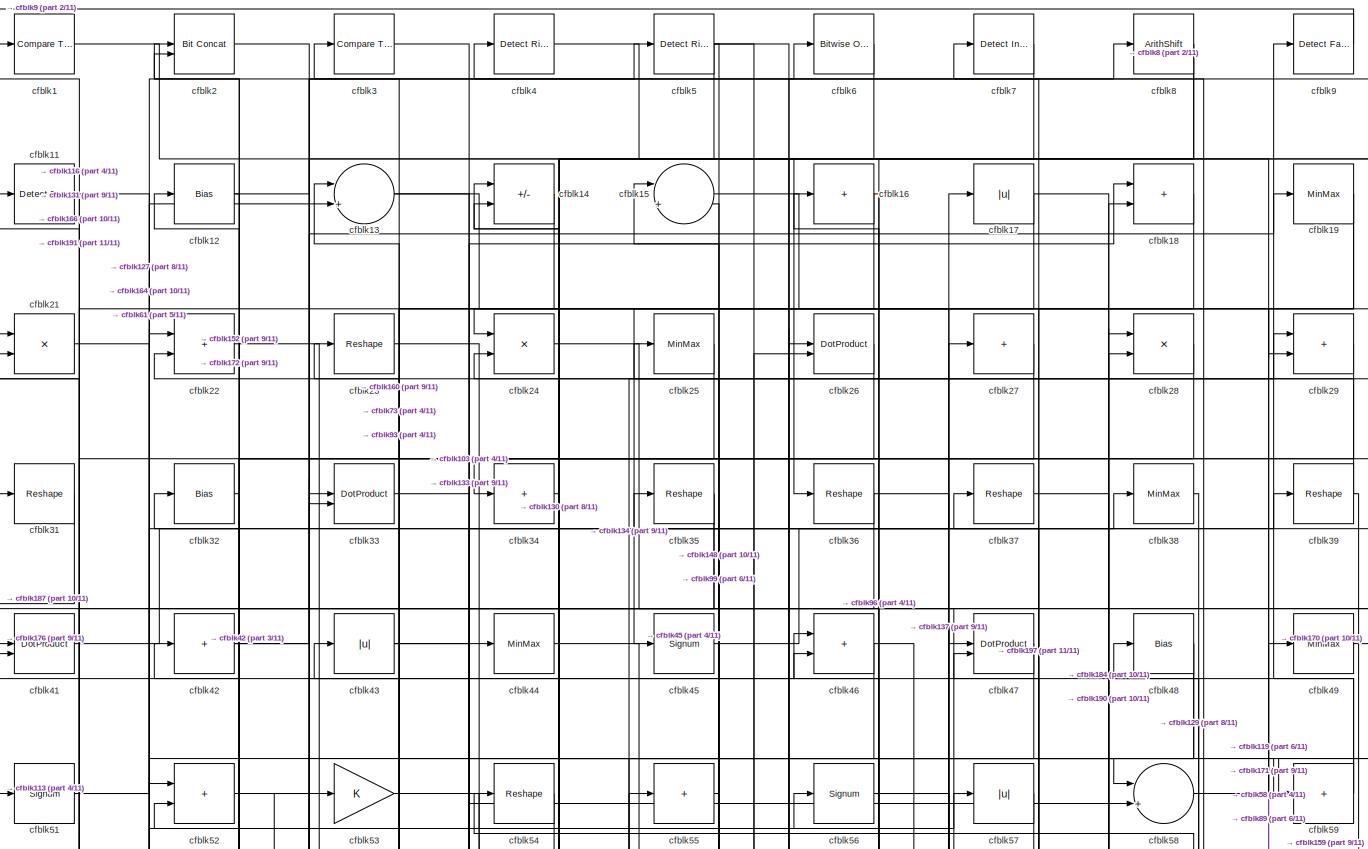
[diagram: root canvas - part 1/11, full width, top band]
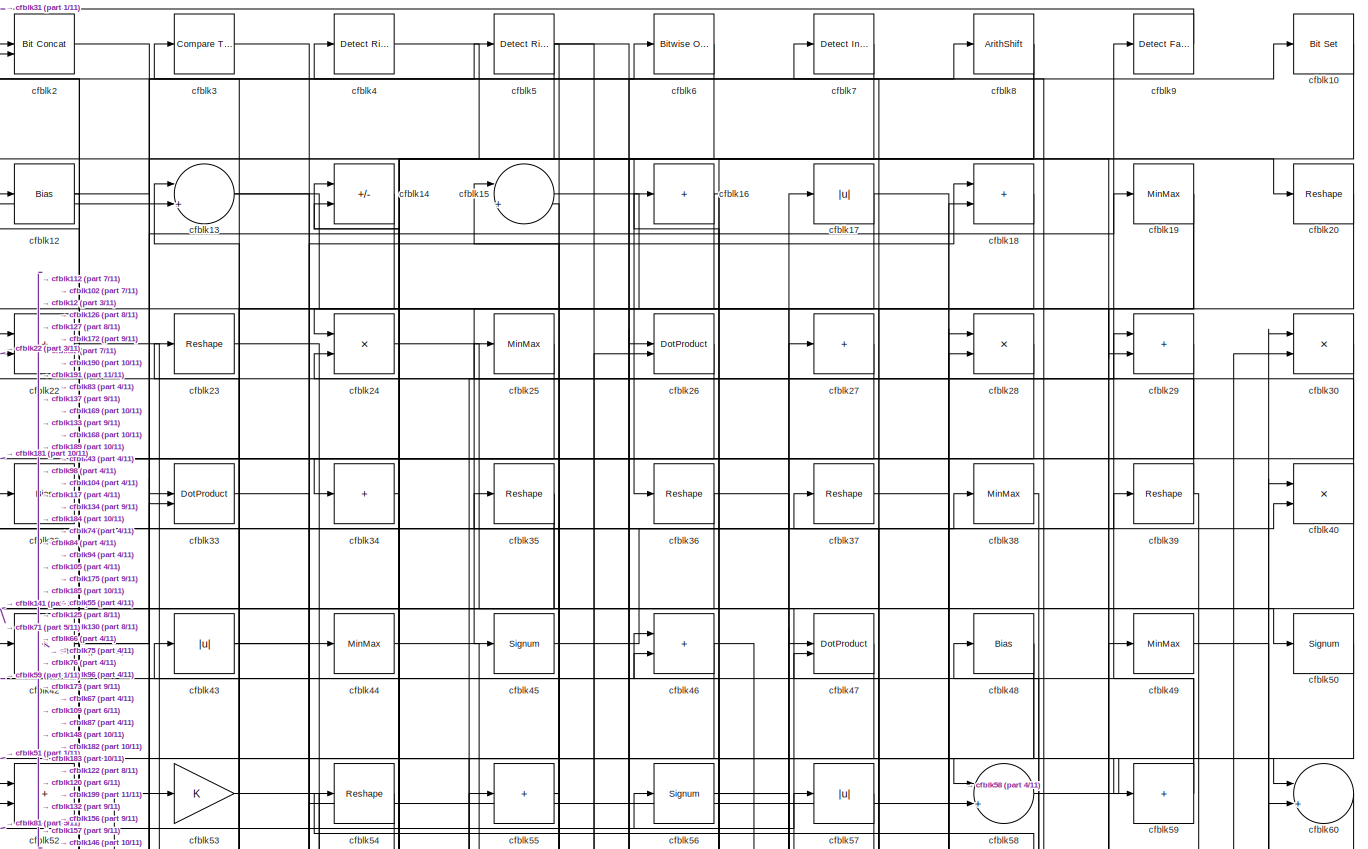
[diagram: root canvas - part 2/11, full width, top band]
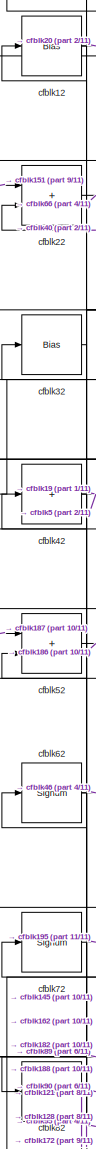
[diagram: root canvas - part 3/11, top left region]
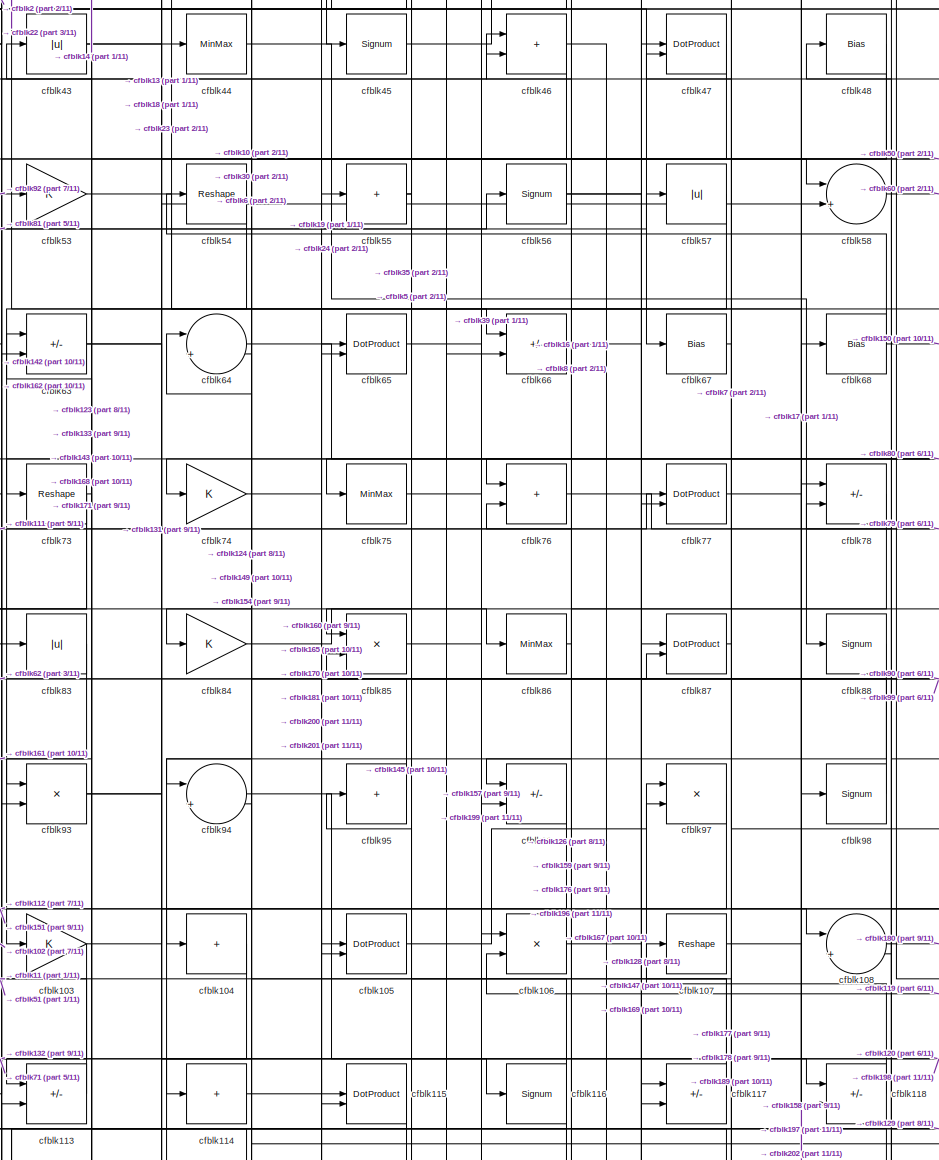
[diagram: root canvas - part 4/11, central region]
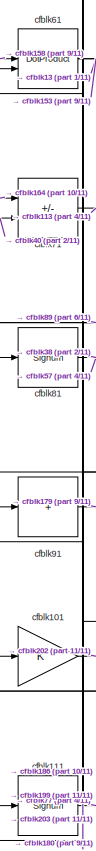
[diagram: root canvas - part 5/11, middle left region]
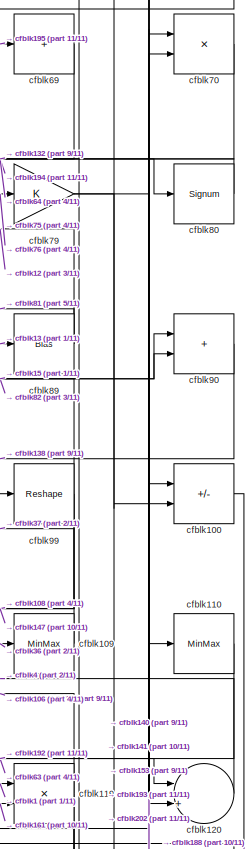
[diagram: root canvas - part 6/11, middle right region]
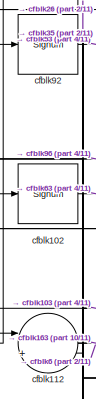
[diagram: root canvas - part 7/11, middle left region]
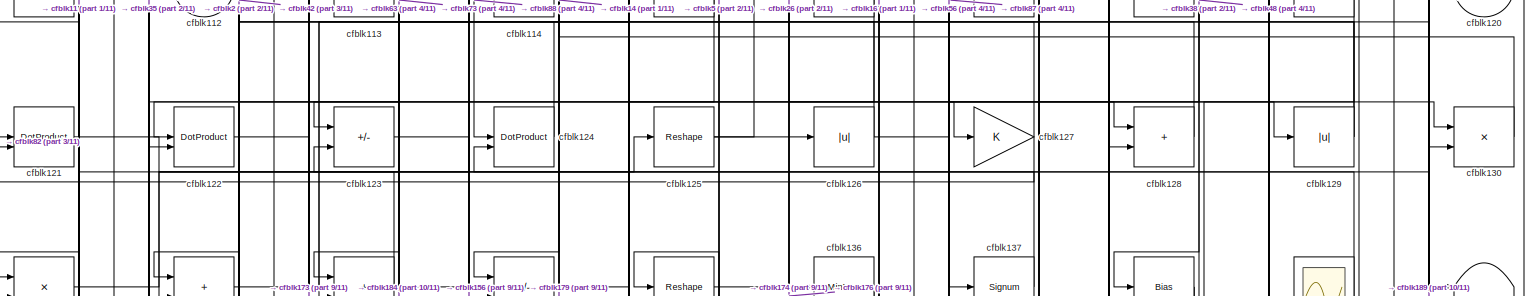
[diagram: root canvas - part 8/11, full width, middle band]
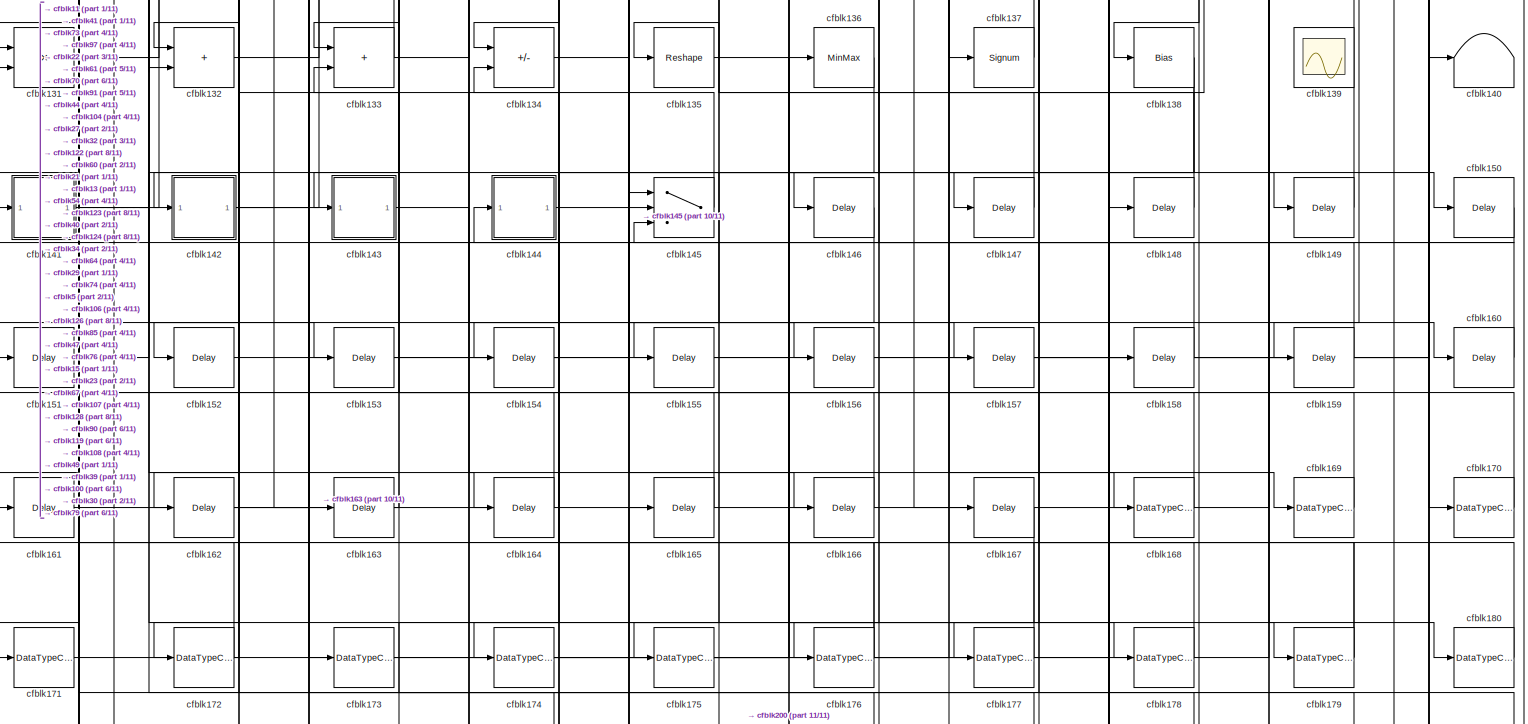
[diagram: root canvas - part 9/11, full width, bottom band]
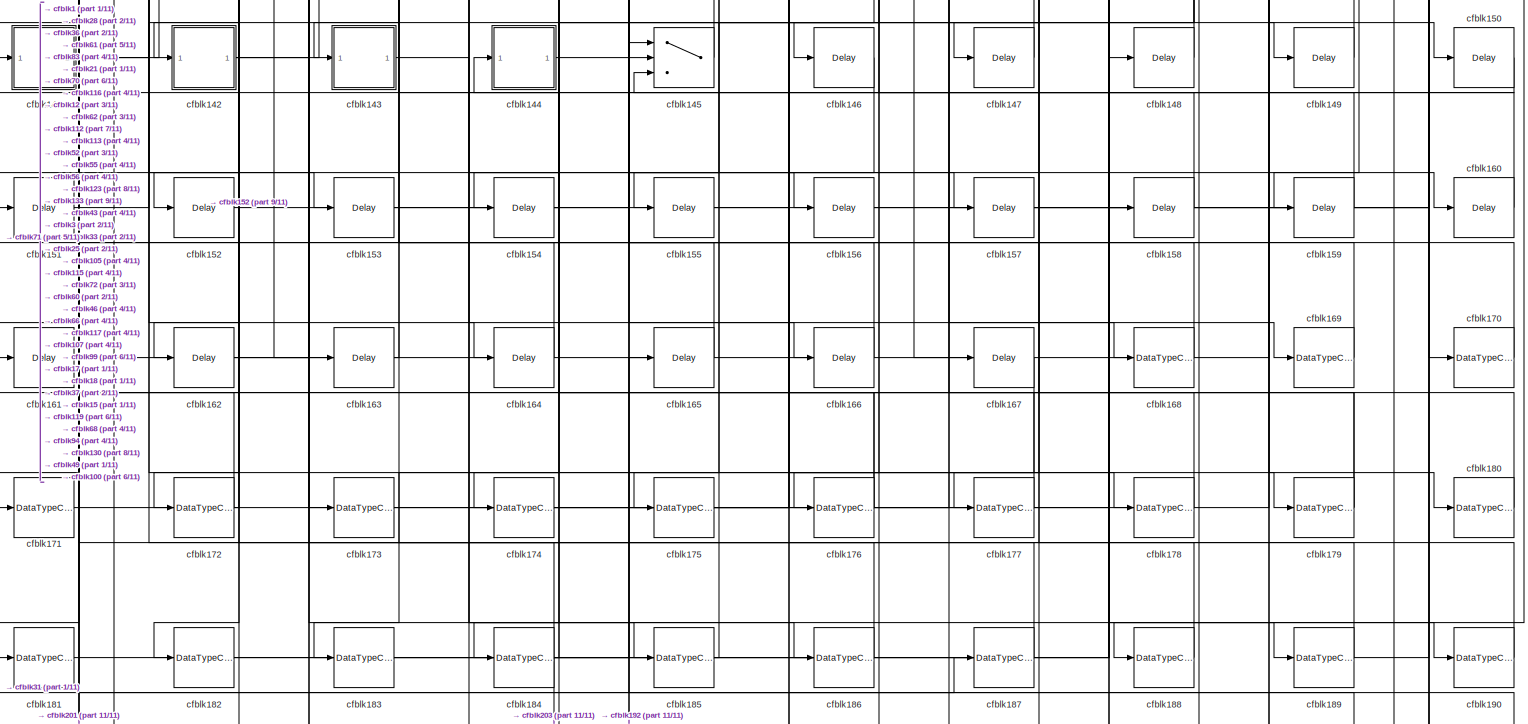
[diagram: root canvas - part 10/11, full width, bottom band]
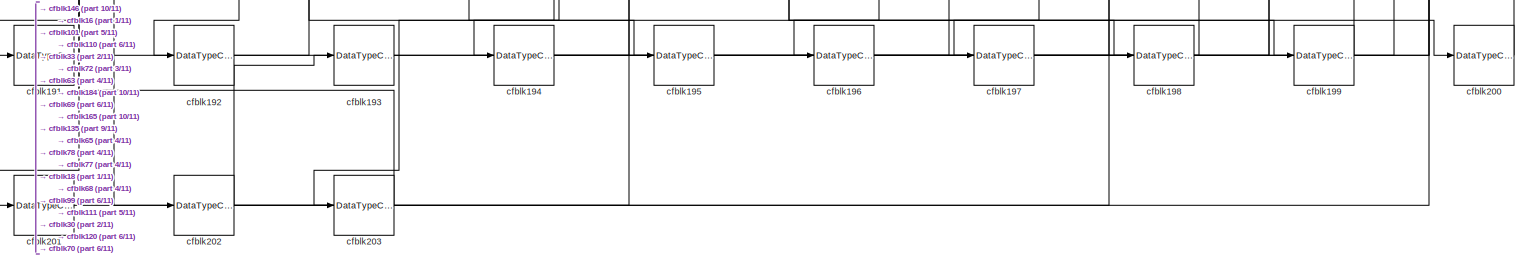
[diagram: root canvas - part 11/11, full width, bottom band]
MODEL slx_de4a52968cdf
KIND model
CONFIG AbsTol = auto
CONFIG EnableMultiTasking = off
CONFIG FixedStep = auto
CONFIG MaxStep = auto
CONFIG MinStep = auto
CONFIG RelTol = 1e-3
CONFIG SampleTimeConstraint = Unconstrained
CONFIG SolverName = VariableStepAuto
CONFIG StartTime = 0.0
CONFIG StopTime = 10.0
BLOCK [Reference] cfblk1  REF=hdlsllib/Logic and Bit
Operations/Compare
To Constant
  SourceBlock = hdlsllib/Logic and Bit\nOperations/Compare\nTo Constant
  SourceType = Compare To Constant
BLOCK [Reference] cfblk10  REF=simulink/Logic and Bit
Operations/Bit Set
  LibrarySourceBlock = hdlsllib/Logic and Bit\nOperations/Bit Set
  SourceBlock = simulink/Logic and Bit\nOperations/Bit Set
  SourceType = Bit Set
BLOCK [Sum] cfblk100
  IconShape = rectangular
  Inputs = +-
BLOCK [Gain] cfblk101
BLOCK [Signum] cfblk102
BLOCK [Gain] cfblk103
BLOCK [Sum] cfblk104
  IconShape = rectangular
  Inputs = +
BLOCK [DotProduct] cfblk105
  OutDataTypeStr = Inherit: Inherit via internal rule
BLOCK [Product] cfblk106
  Inputs = */
  RndMeth = Zero
  SaturateOnIntegerOverflow = on
BLOCK [Reshape] cfblk107
BLOCK [Sum] cfblk108
  Inputs = |++
BLOCK [MinMax] cfblk109
BLOCK [Reference] cfblk11  REF=hdlsllib/Logic and Bit
Operations/Detect Fall
Nonpositive
  SourceBlock = hdlsllib/Logic and Bit\nOperations/Detect Fall\nNonpositive
  SourceType = Detect Fall Nonpositive
BLOCK [MinMax] cfblk110
BLOCK [Signum] cfblk111
BLOCK [Sum] cfblk112
  Inputs = |++
BLOCK [Sum] cfblk113
  IconShape = rectangular
  Inputs = +-
BLOCK [Sum] cfblk114
  IconShape = rectangular
  Inputs = +
BLOCK [DotProduct] cfblk115
  OutDataTypeStr = Inherit: Inherit via internal rule
BLOCK [Signum] cfblk116
BLOCK [Sum] cfblk117
  IconShape = rectangular
  Inputs = +-
BLOCK [Sum] cfblk118
  IconShape = rectangular
  Inputs = +-
BLOCK [Product] cfblk119
  Inputs = */
  RndMeth = Zero
  SaturateOnIntegerOverflow = on
BLOCK [Bias] cfblk12
  Bias = 0.0
  SaturateOnIntegerOverflow = off
BLOCK [Sum] cfblk120
  Inputs = |++
BLOCK [DotProduct] cfblk121
  OutDataTypeStr = Inherit: Inherit via internal rule
BLOCK [DotProduct] cfblk122
  OutDataTypeStr = Inherit: Inherit via internal rule
BLOCK [Sum] cfblk123
  IconShape = rectangular
  Inputs = +-
BLOCK [DotProduct] cfblk124
  OutDataTypeStr = Inherit: Inherit via internal rule
BLOCK [Reshape] cfblk125
BLOCK [Abs] cfblk126
  SaturateOnIntegerOverflow = off
BLOCK [Gain] cfblk127
BLOCK [Sum] cfblk128
  IconShape = rectangular
BLOCK [Abs] cfblk129
  SaturateOnIntegerOverflow = off
BLOCK [Sum] cfblk13
  Inputs = |++
BLOCK [Product] cfblk130
  Inputs = */
  RndMeth = Zero
  SaturateOnIntegerOverflow = on
BLOCK [Product] cfblk131
  Inputs = */
  RndMeth = Zero
  SaturateOnIntegerOverflow = on
BLOCK [Sum] cfblk132
  IconShape = rectangular
BLOCK [Sum] cfblk133
  IconShape = rectangular
BLOCK [Sum] cfblk134
  IconShape = rectangular
  Inputs = +-
BLOCK [Reshape] cfblk135
BLOCK [MinMax] cfblk136
BLOCK [Signum] cfblk137
BLOCK [Bias] cfblk138
  Bias = 0.0
  SaturateOnIntegerOverflow = off
BLOCK [Scope] cfblk139
  Floating = on
  NumInputPorts = 1
  ScopeSpecificationString = Simulink.scopes.TimeScopeBlockCfg('CurrentConfiguration', extmgr.ConfigurationSet(extmgr.Configuration('Core','General UI',true,'FigureColor',[0.156862745098039 0.156862745098039 0.156862745098039]),extmgr.Configuration('Core','Source UI',true),extmgr.Configuration('Sources','WiredSimulink',true,'DataLoggingVariableName','ScopeData1','DataLoggingSaveFormat','StructureWithTime','DataLoggingLimitDat...<+2713ch>
BLOCK [Sum] cfblk14
  IconShape = rectangular
  Inputs = +-
BLOCK [Terminator] cfblk140
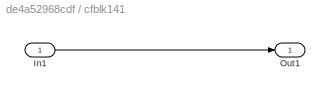
BLOCK [SubSystem] cfblk141
  LibrarySourceBlock = hdlsllib/Ports &\nSubsystems/Subsystem
BLOCK [Inport] cfblk141/In1
BLOCK [Outport] cfblk141/Out1
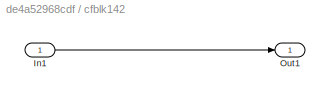
BLOCK [SubSystem] cfblk142
  LibrarySourceBlock = hdlsllib/Ports &\nSubsystems/Subsystem
BLOCK [Inport] cfblk142/In1
BLOCK [Outport] cfblk142/Out1
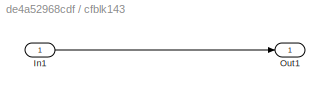
BLOCK [SubSystem] cfblk143
  LibrarySourceBlock = hdlsllib/Ports &\nSubsystems/Subsystem
BLOCK [Inport] cfblk143/In1
BLOCK [Outport] cfblk143/Out1
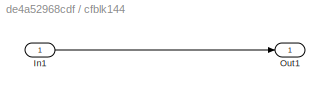
BLOCK [SubSystem] cfblk144
  LibrarySourceBlock = hdlsllib/Ports &\nSubsystems/Subsystem
BLOCK [Inport] cfblk144/In1
BLOCK [Outport] cfblk144/Out1
BLOCK [Switch] cfblk145
  InputSameDT = off
  SaturateOnIntegerOverflow = off
BLOCK [Delay] cfblk146
  InputPortMap = u0
  SampleTime = 1
BLOCK [Delay] cfblk147
  InputPortMap = u0
  SampleTime = 1
BLOCK [Delay] cfblk148
  InputPortMap = u0
  SampleTime = 1
BLOCK [Delay] cfblk149
  InputPortMap = u0
  SampleTime = 1
BLOCK [Sum] cfblk15
  Inputs = |++
BLOCK [Delay] cfblk150
  InputPortMap = u0
  SampleTime = 1
BLOCK [Delay] cfblk151
  InputPortMap = u0
  SampleTime = 1
BLOCK [Delay] cfblk152
  InputPortMap = u0
  SampleTime = 1
BLOCK [Delay] cfblk153
  InputPortMap = u0
  SampleTime = 1
BLOCK [Delay] cfblk154
  InputPortMap = u0
  SampleTime = 1
BLOCK [Delay] cfblk155
  InputPortMap = u0
  SampleTime = 1
BLOCK [Delay] cfblk156
  InputPortMap = u0
  SampleTime = 1
BLOCK [Delay] cfblk157
  InputPortMap = u0
  SampleTime = 1
BLOCK [Delay] cfblk158
  InputPortMap = u0
  SampleTime = 1
BLOCK [Delay] cfblk159
  InputPortMap = u0
  SampleTime = 1
BLOCK [Sum] cfblk16
  IconShape = rectangular
  Inputs = +
BLOCK [Delay] cfblk160
  InputPortMap = u0
  SampleTime = 1
BLOCK [Delay] cfblk161
  InputPortMap = u0
  SampleTime = 1
BLOCK [Delay] cfblk162
  InputPortMap = u0
  SampleTime = 1
BLOCK [Delay] cfblk163
  InputPortMap = u0
  SampleTime = 1
BLOCK [Delay] cfblk164
  InputPortMap = u0
  SampleTime = 1
BLOCK [Delay] cfblk165
  InputPortMap = u0
  SampleTime = 1
BLOCK [Delay] cfblk166
  InputPortMap = u0
  SampleTime = 1
BLOCK [Delay] cfblk167
  InputPortMap = u0
  SampleTime = 1
BLOCK [DataTypeConversion] cfblk168
  OutDataTypeStr = uint8
  RndMeth = Floor
  SaturateOnIntegerOverflow = off
BLOCK [DataTypeConversion] cfblk169
  OutDataTypeStr = uint8
  RndMeth = Floor
  SaturateOnIntegerOverflow = off
BLOCK [Abs] cfblk17
  SaturateOnIntegerOverflow = off
BLOCK [DataTypeConversion] cfblk170
  OutDataTypeStr = uint8
  RndMeth = Floor
  SaturateOnIntegerOverflow = off
BLOCK [DataTypeConversion] cfblk171
  OutDataTypeStr = uint8
  RndMeth = Floor
  SaturateOnIntegerOverflow = off
BLOCK [DataTypeConversion] cfblk172
  RndMeth = Floor
  SaturateOnIntegerOverflow = off
BLOCK [DataTypeConversion] cfblk173
  OutDataTypeStr = uint8
  RndMeth = Floor
  SaturateOnIntegerOverflow = off
BLOCK [DataTypeConversion] cfblk174
  OutDataTypeStr = uint8
  RndMeth = Floor
  SaturateOnIntegerOverflow = off
BLOCK [DataTypeConversion] cfblk175
  OutDataTypeStr = uint8
  RndMeth = Floor
  SaturateOnIntegerOverflow = off
BLOCK [DataTypeConversion] cfblk176
  RndMeth = Floor
  SaturateOnIntegerOverflow = off
BLOCK [DataTypeConversion] cfblk177
  OutDataTypeStr = uint8
  RndMeth = Floor
  SaturateOnIntegerOverflow = off
BLOCK [DataTypeConversion] cfblk178
  OutDataTypeStr = uint8
  RndMeth = Floor
  SaturateOnIntegerOverflow = off
BLOCK [DataTypeConversion] cfblk179
  RndMeth = Floor
  SaturateOnIntegerOverflow = off
BLOCK [Sum] cfblk18
  IconShape = rectangular
BLOCK [DataTypeConversion] cfblk180
  OutDataTypeStr = uint8
  RndMeth = Floor
  SaturateOnIntegerOverflow = off
BLOCK [DataTypeConversion] cfblk181
  OutDataTypeStr = uint8
  RndMeth = Floor
  SaturateOnIntegerOverflow = off
BLOCK [DataTypeConversion] cfblk182
  OutDataTypeStr = uint8
  RndMeth = Floor
  SaturateOnIntegerOverflow = off
BLOCK [DataTypeConversion] cfblk183
  OutDataTypeStr = uint8
  RndMeth = Floor
  SaturateOnIntegerOverflow = off
BLOCK [DataTypeConversion] cfblk184
  RndMeth = Floor
  SaturateOnIntegerOverflow = off
BLOCK [DataTypeConversion] cfblk185
  OutDataTypeStr = uint8
  RndMeth = Floor
  SaturateOnIntegerOverflow = off
BLOCK [DataTypeConversion] cfblk186
  OutDataTypeStr = uint8
  RndMeth = Floor
  SaturateOnIntegerOverflow = off
BLOCK [DataTypeConversion] cfblk187
  OutDataTypeStr = uint8
  RndMeth = Floor
  SaturateOnIntegerOverflow = off
BLOCK [DataTypeConversion] cfblk188
  OutDataTypeStr = uint8
  RndMeth = Floor
  SaturateOnIntegerOverflow = off
BLOCK [DataTypeConversion] cfblk189
  RndMeth = Floor
  SaturateOnIntegerOverflow = off
BLOCK [MinMax] cfblk19
BLOCK [DataTypeConversion] cfblk190
  OutDataTypeStr = uint8
  RndMeth = Floor
  SaturateOnIntegerOverflow = off
BLOCK [DataTypeConversion] cfblk191
  OutDataTypeStr = uint8
  RndMeth = Floor
  SaturateOnIntegerOverflow = off
BLOCK [DataTypeConversion] cfblk192
  OutDataTypeStr = uint8
  RndMeth = Floor
  SaturateOnIntegerOverflow = off
BLOCK [DataTypeConversion] cfblk193
  OutDataTypeStr = uint8
  RndMeth = Floor
  SaturateOnIntegerOverflow = off
BLOCK [DataTypeConversion] cfblk194
  RndMeth = Floor
  SaturateOnIntegerOverflow = off
BLOCK [DataTypeConversion] cfblk195
  OutDataTypeStr = uint8
  RndMeth = Floor
  SaturateOnIntegerOverflow = off
BLOCK [DataTypeConversion] cfblk196
  OutDataTypeStr = uint8
  RndMeth = Floor
  SaturateOnIntegerOverflow = off
BLOCK [DataTypeConversion] cfblk197
  OutDataTypeStr = uint8
  RndMeth = Floor
  SaturateOnIntegerOverflow = off
BLOCK [DataTypeConversion] cfblk198
  OutDataTypeStr = uint8
  RndMeth = Floor
  SaturateOnIntegerOverflow = off
BLOCK [DataTypeConversion] cfblk199
  RndMeth = Floor
  SaturateOnIntegerOverflow = off
BLOCK [Reference] cfblk2  REF=hdlsllib/Logic and Bit
Operations/Bit Concat
  SourceBlock = hdlsllib/Logic and Bit\nOperations/Bit Concat
  SourceType = Bit Concat
BLOCK [Reshape] cfblk20
BLOCK [DataTypeConversion] cfblk200
  OutDataTypeStr = uint8
  RndMeth = Floor
  SaturateOnIntegerOverflow = off
BLOCK [DataTypeConversion] cfblk201
  OutDataTypeStr = uint8
  RndMeth = Floor
  SaturateOnIntegerOverflow = off
BLOCK [DataTypeConversion] cfblk202
  RndMeth = Floor
  SaturateOnIntegerOverflow = off
BLOCK [DataTypeConversion] cfblk203
  OutDataTypeStr = uint8
  RndMeth = Floor
  SaturateOnIntegerOverflow = off
BLOCK [Product] cfblk21
  Inputs = */
  RndMeth = Zero
  SaturateOnIntegerOverflow = on
BLOCK [Sum] cfblk22
  IconShape = rectangular
BLOCK [Reshape] cfblk23
BLOCK [Product] cfblk24
  Inputs = */
  RndMeth = Zero
  SaturateOnIntegerOverflow = on
BLOCK [MinMax] cfblk25
BLOCK [DotProduct] cfblk26
  OutDataTypeStr = Inherit: Inherit via internal rule
BLOCK [Sum] cfblk27
  IconShape = rectangular
  Inputs = +
BLOCK [Product] cfblk28
  Inputs = */
  RndMeth = Zero
  SaturateOnIntegerOverflow = on
BLOCK [Sum] cfblk29
  IconShape = rectangular
BLOCK [Reference] cfblk3  REF=hdlsllib/Logic and Bit
Operations/Compare
To Constant
  SourceBlock = hdlsllib/Logic and Bit\nOperations/Compare\nTo Constant
  SourceType = Compare To Constant
BLOCK [Product] cfblk30
  Inputs = */
  RndMeth = Zero
  SaturateOnIntegerOverflow = on
BLOCK [Reshape] cfblk31
BLOCK [Bias] cfblk32
  Bias = 0.0
  SaturateOnIntegerOverflow = off
BLOCK [DotProduct] cfblk33
  OutDataTypeStr = Inherit: Inherit via internal rule
BLOCK [Sum] cfblk34
  IconShape = rectangular
  Inputs = +
BLOCK [Reshape] cfblk35
BLOCK [Reshape] cfblk36
BLOCK [Reshape] cfblk37
BLOCK [MinMax] cfblk38
BLOCK [Reshape] cfblk39
BLOCK [Reference] cfblk4  REF=hdlsllib/Logic and Bit
Operations/Detect Rise
Positive
  SourceBlock = hdlsllib/Logic and Bit\nOperations/Detect Rise\nPositive
  SourceType = Detect Rise Positive
BLOCK [Product] cfblk40
  Inputs = */
  RndMeth = Zero
  SaturateOnIntegerOverflow = on
BLOCK [DotProduct] cfblk41
  OutDataTypeStr = Inherit: Inherit via internal rule
BLOCK [Sum] cfblk42
  IconShape = rectangular
  Inputs = +
BLOCK [Abs] cfblk43
  SaturateOnIntegerOverflow = off
BLOCK [MinMax] cfblk44
BLOCK [Signum] cfblk45
BLOCK [Sum] cfblk46
  IconShape = rectangular
BLOCK [DotProduct] cfblk47
  OutDataTypeStr = Inherit: Inherit via internal rule
BLOCK [Bias] cfblk48
  Bias = 0.0
  SaturateOnIntegerOverflow = off
BLOCK [MinMax] cfblk49
BLOCK [Reference] cfblk5  REF=hdlsllib/Logic and Bit
Operations/Detect Rise
Nonnegative
  SourceBlock = hdlsllib/Logic and Bit\nOperations/Detect Rise\nNonnegative
  SourceType = Detect Rise Nonnegative
BLOCK [Signum] cfblk50
BLOCK [Signum] cfblk51
BLOCK [Sum] cfblk52
  IconShape = rectangular
BLOCK [Gain] cfblk53
BLOCK [Reshape] cfblk54
BLOCK [Sum] cfblk55
  IconShape = rectangular
  Inputs = +
BLOCK [Signum] cfblk56
BLOCK [Abs] cfblk57
  SaturateOnIntegerOverflow = off
BLOCK [Sum] cfblk58
  Inputs = |++
BLOCK [Sum] cfblk59
  IconShape = rectangular
  Inputs = +
BLOCK [Reference] cfblk6  REF=simulink/Logic and Bit
Operations/Bitwise
Operator
  LibrarySourceBlock = hdlsllib/Logic and Bit\nOperations/Bitwise\nOperator
  SourceBlock = simulink/Logic and Bit\nOperations/Bitwise\nOperator
  SourceType = Bitwise Operator
BLOCK [Sum] cfblk60
  Inputs = |++
BLOCK [DotProduct] cfblk61
  OutDataTypeStr = Inherit: Inherit via internal rule
BLOCK [Signum] cfblk62
BLOCK [Sum] cfblk63
  IconShape = rectangular
  Inputs = +-
BLOCK [Sum] cfblk64
  Inputs = |++
BLOCK [DotProduct] cfblk65
  OutDataTypeStr = Inherit: Inherit via internal rule
BLOCK [Sum] cfblk66
  IconShape = rectangular
  Inputs = +-
BLOCK [Bias] cfblk67
  Bias = 0.0
  SaturateOnIntegerOverflow = off
BLOCK [Bias] cfblk68
  Bias = 0.0
  SaturateOnIntegerOverflow = off
BLOCK [Sum] cfblk69
  IconShape = rectangular
  Inputs = +
BLOCK [Reference] cfblk7  REF=simulink/Logic and Bit
Operations/Detect
Increase
  LibrarySourceBlock = hdlsllib/Logic and Bit\nOperations/Detect\nIncrease
  SourceBlock = simulink/Logic and Bit\nOperations/Detect\nIncrease
  SourceType = Detect Increase
BLOCK [Product] cfblk70
  Inputs = */
  RndMeth = Zero
  SaturateOnIntegerOverflow = on
BLOCK [Sum] cfblk71
  IconShape = rectangular
  Inputs = +-
BLOCK [Signum] cfblk72
BLOCK [Reshape] cfblk73
BLOCK [Gain] cfblk74
BLOCK [MinMax] cfblk75
BLOCK [Sum] cfblk76
  IconShape = rectangular
BLOCK [DotProduct] cfblk77
  OutDataTypeStr = Inherit: Inherit via internal rule
BLOCK [Sum] cfblk78
  IconShape = rectangular
  Inputs = +-
BLOCK [Gain] cfblk79
BLOCK [ArithShift] cfblk8
  BitShiftNumber = 8
  InputPortMap = u0
BLOCK [Signum] cfblk80
BLOCK [Signum] cfblk81
BLOCK [Bias] cfblk82
  Bias = 0.0
  SaturateOnIntegerOverflow = off
BLOCK [Abs] cfblk83
  SaturateOnIntegerOverflow = off
BLOCK [Gain] cfblk84
BLOCK [Product] cfblk85
  Inputs = */
  RndMeth = Zero
  SaturateOnIntegerOverflow = on
BLOCK [MinMax] cfblk86
BLOCK [DotProduct] cfblk87
  OutDataTypeStr = Inherit: Inherit via internal rule
BLOCK [Signum] cfblk88
BLOCK [Bias] cfblk89
  Bias = 0.0
  SaturateOnIntegerOverflow = off
BLOCK [Reference] cfblk9  REF=hdlsllib/Logic and Bit
Operations/Detect Fall
Negative
  SourceBlock = hdlsllib/Logic and Bit\nOperations/Detect Fall\nNegative
  SourceType = Detect Fall Negative
BLOCK [Sum] cfblk90
  IconShape = rectangular
BLOCK [Sum] cfblk91
  IconShape = rectangular
  Inputs = +
BLOCK [Signum] cfblk92
BLOCK [Product] cfblk93
  Inputs = */
  RndMeth = Zero
  SaturateOnIntegerOverflow = on
BLOCK [Sum] cfblk94
  Inputs = |++
BLOCK [Sum] cfblk95
  IconShape = rectangular
  Inputs = +
BLOCK [Sum] cfblk96
  IconShape = rectangular
  Inputs = +-
BLOCK [Product] cfblk97
  Inputs = */
  RndMeth = Zero
  SaturateOnIntegerOverflow = on
BLOCK [Signum] cfblk98
BLOCK [Reshape] cfblk99
LINE cfblk100:1 -> cfblk188:1
LINE cfblk101:1 -> cfblk202:1
LINE cfblk102:1 -> cfblk63:2
NET cfblk103:1 -> cfblk112:2, cfblk18:1
LINE cfblk104:1 -> cfblk132:1
LINE cfblk105:1 -> cfblk97:1
LINE cfblk106:1 -> cfblk90:1
LINE cfblk107:1 -> cfblk158:1
LINE cfblk108:1 -> cfblk180:1
LINE cfblk109:1 -> cfblk37:1
LINE cfblk10:1 -> cfblk84:1
LINE cfblk110:1 -> cfblk192:1
LINE cfblk111:1 -> cfblk77:1
NET cfblk112:1 -> cfblk163:1, cfblk6:1
LINE cfblk113:1 -> cfblk51:1
LINE cfblk114:1 -> cfblk87:2
LINE cfblk115:1 -> cfblk145:2
NET cfblk116:1 -> cfblk11:1, cfblk142:1
NET cfblk117:1 -> cfblk24:2, cfblk95:1
LINE cfblk118:1 -> cfblk97:2
NET cfblk119:1 -> cfblk106:2, cfblk135:1
NET cfblk11:1 -> cfblk127:1, cfblk131:1
LINE cfblk120:1 -> cfblk4:1
LINE cfblk121:1 -> cfblk125:1
LINE cfblk122:1 -> cfblk173:1
LINE cfblk123:1 -> cfblk156:1
LINE cfblk124:1 -> cfblk63:1
NET cfblk125:1 -> cfblk26:1, cfblk26:2
NET cfblk126:1 -> cfblk2:2, cfblk87:1
NET cfblk127:1 -> cfblk121:1, cfblk2:1
LINE cfblk128:1 -> cfblk42:1
NET cfblk129:1 -> cfblk16:1, cfblk48:1
NET cfblk12:1 -> cfblk162:1, cfblk20:1
LINE cfblk130:1 -> cfblk14:1
LINE cfblk131:1 -> cfblk44:1
LINE cfblk132:1 -> cfblk60:2
NET cfblk133:1 -> cfblk21:2, cfblk40:2
LINE cfblk134:1 -> cfblk29:1
LINE cfblk135:1 -> cfblk200:1
LINE cfblk136:1 -> cfblk174:1
LINE cfblk137:1 -> cfblk23:1
NET cfblk138:1 -> cfblk154:1, cfblk155:1
NET cfblk13:1 -> cfblk58:1, cfblk89:1
LINE cfblk141/In1:1 -> cfblk141/Out1:1
NET cfblk141:1 -> cfblk149:1, cfblk70:2
LINE cfblk142/In1:1 -> cfblk142/Out1:1
NET cfblk142:1 -> cfblk55:1, cfblk56:1
LINE cfblk143/In1:1 -> cfblk143/Out1:1
LINE cfblk143:1 -> cfblk185:1
LINE cfblk144/In1:1 -> cfblk144/Out1:1
LINE cfblk144:1 -> cfblk166:1
LINE cfblk145:1 -> cfblk72:1
LINE cfblk146:1 -> cfblk201:1
LINE cfblk147:1 -> cfblk117:1
LINE cfblk148:1 -> cfblk15:1
LINE cfblk149:1 -> cfblk94:2
LINE cfblk14:1 -> cfblk93:1
LINE cfblk150:1 -> cfblk145:3
LINE cfblk151:1 -> cfblk22:1
LINE cfblk152:1 -> cfblk145:1
LINE cfblk153:1 -> cfblk100:1
LINE cfblk154:1 -> cfblk64:1
LINE cfblk155:1 -> cfblk178:1
LINE cfblk156:1 -> cfblk30:1
LINE cfblk157:1 -> cfblk40:1
LINE cfblk158:1 -> cfblk61:1
LINE cfblk159:1 -> cfblk76:2
LINE cfblk15:1 -> cfblk137:1
LINE cfblk160:1 -> cfblk13:1
LINE cfblk161:1 -> cfblk119:2
LINE cfblk162:1 -> cfblk113:2
LINE cfblk163:1 -> cfblk133:2
LINE cfblk164:1 -> cfblk71:1
LINE cfblk165:1 -> cfblk115:1
LINE cfblk166:1 -> cfblk1:1
LINE cfblk167:1 -> cfblk183:1
LINE cfblk168:1 -> cfblk43:1
LINE cfblk169:1 -> cfblk3:1
NET cfblk16:1 -> cfblk191:1, cfblk96:1
LINE cfblk170:1 -> cfblk105:1
LINE cfblk171:1 -> cfblk49:1
NET cfblk172:1 -> cfblk32:1, cfblk41:2
LINE cfblk173:1 -> cfblk27:1
LINE cfblk174:1 -> cfblk126:1
LINE cfblk175:1 -> cfblk136:1
NET cfblk176:1 -> cfblk106:1, cfblk128:2, cfblk41:1
LINE cfblk177:1 -> cfblk47:1
LINE cfblk178:1 -> cfblk47:2
NET cfblk179:1 -> cfblk124:2, cfblk134:2
NET cfblk17:1 -> cfblk190:1, cfblk73:1
LINE cfblk180:1 -> cfblk91:1
LINE cfblk181:1 -> cfblk115:2
LINE cfblk182:1 -> cfblk28:1
LINE cfblk183:1 -> cfblk28:2
NET cfblk184:1 -> cfblk123:2, cfblk144:1, cfblk18:2, cfblk203:1
LINE cfblk185:1 -> cfblk25:1
LINE cfblk186:1 -> cfblk61:2
LINE cfblk187:1 -> cfblk52:1
LINE cfblk188:1 -> cfblk52:2
NET cfblk189:1 -> cfblk107:1, cfblk130:2
LINE cfblk18:1 -> cfblk197:1
LINE cfblk190:1 -> cfblk33:1
LINE cfblk191:1 -> cfblk33:2
LINE cfblk192:1 -> cfblk165:1
LINE cfblk193:1 -> cfblk110:1
NET cfblk194:1 -> cfblk70:1, cfblk99:1
LINE cfblk195:1 -> cfblk69:1
LINE cfblk196:1 -> cfblk77:2
LINE cfblk197:1 -> cfblk78:1
LINE cfblk198:1 -> cfblk78:2
NET cfblk199:1 -> cfblk111:1, cfblk30:2
NET cfblk19:1 -> cfblk29:2, cfblk45:1
LINE cfblk1:1 -> cfblk119:1
LINE cfblk200:1 -> cfblk65:1
LINE cfblk201:1 -> cfblk65:2
NET cfblk202:1 -> cfblk120:2, cfblk193:1, cfblk68:1
LINE cfblk203:1 -> cfblk101:1
LINE cfblk20:1 -> cfblk24:1
LINE cfblk21:1 -> cfblk164:1
LINE cfblk22:1 -> cfblk66:1
LINE cfblk23:1 -> cfblk98:1
LINE cfblk24:1 -> cfblk67:1
LINE cfblk25:1 -> cfblk184:1
LINE cfblk26:1 -> cfblk102:1
LINE cfblk27:1 -> cfblk172:1
LINE cfblk28:1 -> cfblk181:1
LINE cfblk29:1 -> cfblk152:1
LINE cfblk2:1 -> cfblk83:1
LINE cfblk30:1 -> cfblk94:1
LINE cfblk31:1 -> cfblk187:1
LINE cfblk32:1 -> cfblk82:1
LINE cfblk33:1 -> cfblk189:1
LINE cfblk34:1 -> cfblk134:1
NET cfblk35:1 -> cfblk122:2, cfblk92:1
NET cfblk36:1 -> cfblk109:1, cfblk141:1
LINE cfblk37:1 -> cfblk148:1
LINE cfblk38:1 -> cfblk122:1
NET cfblk39:1 -> cfblk14:2, cfblk159:1
LINE cfblk3:1 -> cfblk168:1
NET cfblk40:1 -> cfblk22:2, cfblk71:2
LINE cfblk41:1 -> cfblk17:1
NET cfblk42:1 -> cfblk19:1, cfblk5:1
NET cfblk43:1 -> cfblk108:1, cfblk50:1
LINE cfblk44:1 -> cfblk88:1
LINE cfblk45:1 -> cfblk39:1
NET cfblk46:1 -> cfblk143:1, cfblk167:1
LINE cfblk47:1 -> cfblk176:1
NET cfblk48:1 -> cfblk114:1, cfblk93:2
LINE cfblk49:1 -> cfblk170:1
LINE cfblk4:1 -> cfblk36:1
LINE cfblk50:1 -> cfblk105:2
NET cfblk51:1 -> cfblk59:1, cfblk8:1
LINE cfblk52:1 -> cfblk186:1
LINE cfblk53:1 -> cfblk117:2
LINE cfblk54:1 -> cfblk133:1
NET cfblk55:1 -> cfblk35:1, cfblk85:1
NET cfblk56:1 -> cfblk128:1, cfblk129:1
LINE cfblk57:1 -> cfblk103:1
LINE cfblk58:1 -> cfblk60:1
NET cfblk59:1 -> cfblk21:1, cfblk9:1
NET cfblk5:1 -> cfblk130:1, cfblk175:1, cfblk66:2, cfblk74:1
LINE cfblk60:1 -> cfblk146:1
NET cfblk61:1 -> cfblk13:2, cfblk153:1
NET cfblk62:1 -> cfblk182:1, cfblk46:2
NET cfblk63:1 -> cfblk120:1, cfblk198:1
LINE cfblk64:1 -> cfblk80:1
LINE cfblk65:1 -> cfblk199:1
LINE cfblk66:1 -> cfblk169:1
LINE cfblk67:1 -> cfblk177:1
NET cfblk68:1 -> cfblk150:1, cfblk54:1
LINE cfblk69:1 -> cfblk194:1
LINE cfblk6:1 -> cfblk104:1
LINE cfblk70:1 -> cfblk132:2
LINE cfblk71:1 -> cfblk113:1
LINE cfblk72:1 -> cfblk195:1
NET cfblk73:1 -> cfblk123:1, cfblk131:2, cfblk171:1
LINE cfblk74:1 -> cfblk160:1
LINE cfblk75:1 -> cfblk10:1
LINE cfblk76:1 -> cfblk79:1
LINE cfblk77:1 -> cfblk118:2
LINE cfblk78:1 -> cfblk196:1
NET cfblk79:1 -> cfblk100:2, cfblk140:1
LINE cfblk7:1 -> cfblk34:1
LINE cfblk80:1 -> cfblk75:1
NET cfblk81:1 -> cfblk38:1, cfblk57:1
NET cfblk82:1 -> cfblk121:2, cfblk90:2
LINE cfblk83:1 -> cfblk161:1
LINE cfblk84:1 -> cfblk86:1
LINE cfblk85:1 -> cfblk157:1
LINE cfblk86:1 -> cfblk46:1
LINE cfblk87:1 -> cfblk7:1
NET cfblk88:1 -> cfblk124:1, cfblk85:2
NET cfblk89:1 -> cfblk12:1, cfblk81:1
NET cfblk8:1 -> cfblk76:1, cfblk96:2
LINE cfblk90:1 -> cfblk138:1
LINE cfblk91:1 -> cfblk179:1
LINE cfblk92:1 -> cfblk53:1
NET cfblk93:1 -> cfblk118:1, cfblk58:2
LINE cfblk94:1 -> cfblk116:1
LINE cfblk95:1 -> cfblk62:1
LINE cfblk96:1 -> cfblk112:1
LINE cfblk97:1 -> cfblk151:1
LINE cfblk98:1 -> cfblk64:2
NET cfblk99:1 -> cfblk108:2, cfblk147:1, cfblk15:2
LINE cfblk9:1 -> cfblk31:1
note: NET lines group one-source signal fan-out (src -> all destinations, sorted); 1:1 wires keep LINE
